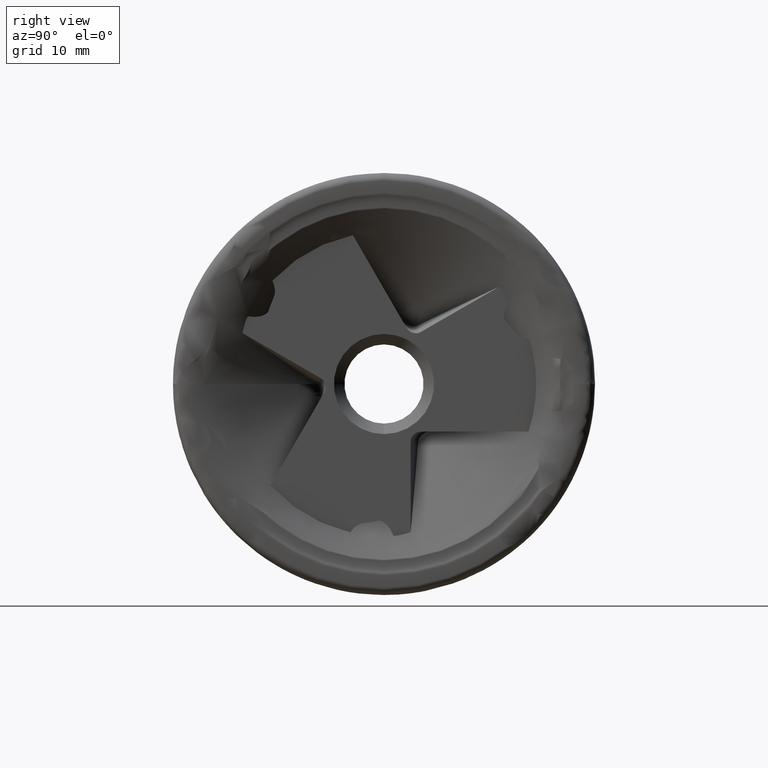
[diagram: clean part render]
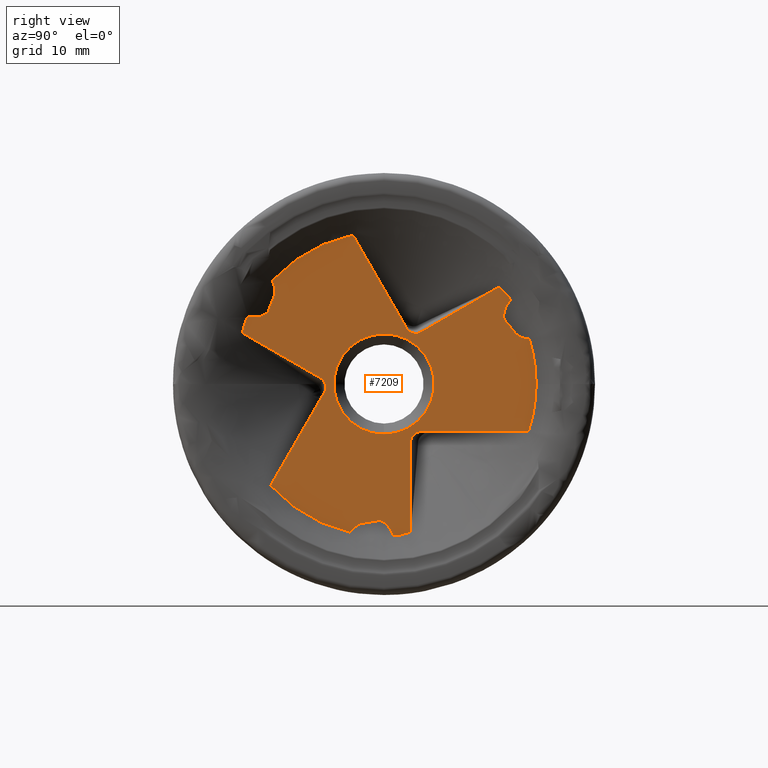
[diagram: same view with one face highlighted and labeled with its STEP entity id]
A machine part, right view. The second image highlights one B-rep face of the part: STEP entity #7209.
In plain terms, the highlighted planar face has unit normal (-1, 0, 0).
Its self-contained STEP definition (entity closure, byte-faithful):
#16 = CARTESIAN_POINT ( 'NONE',  ( -0.5000000000000005600, 3.351750005163252500, 4.845535414424786000 ) ) ;
#19 = VERTEX_POINT ( 'NONE', #11474 ) ;
#105 = VERTEX_POINT ( 'NONE', #3939 ) ;
#125 =( BOUNDED_CURVE ( )  B_SPLINE_CURVE ( 3, ( #6140, #2402, #9063, #10122 ),
 .UNSPECIFIED., .F., .F. ) 
 B_SPLINE_CURVE_WITH_KNOTS ( ( 4, 4 ),
 ( 3.253571808752290500, 3.781706763321075900 ),
 .UNSPECIFIED. ) 
 CURVE ( )  GEOMETRIC_REPRESENTATION_ITEM ( )  RATIONAL_B_SPLINE_CURVE ( ( 1.000000000000000000, 0.9768908783775927000, 0.9768908783775927000, 1.000000000000000000 ) ) 
 REPRESENTATION_ITEM ( '' )  );
#127 = CARTESIAN_POINT ( 'NONE',  ( -0.5000000000000004400, -11.08192346907663000, 6.675620980002825900 ) ) ;
#166 = EDGE_CURVE ( 'NONE', #1456, #9303, #5428, .T. ) ;
#254 = CARTESIAN_POINT ( 'NONE',  ( -0.5000000000108697500, 12.00810344679507600, 7.966066324647489900 ) ) ;
#313 = CARTESIAN_POINT ( 'NONE',  ( -0.5000000000000000000, -10.74187072390124900, -9.605465862133890200 ) ) ;
#318 = DIRECTION ( 'NONE',  ( 0.0000000000000000000, 0.7116359081789792600, -0.7025484568271994600 ) ) ;
#335 = CARTESIAN_POINT ( 'NONE',  ( -0.4999999999999995600, 11.34757849586464600, 6.485020027106956200 ) ) ;
#423 = CARTESIAN_POINT ( 'NONE',  ( -0.5000000000000000000, 2.302259119376288700, 4.239611569003615800 ) ) ;
#444 = EDGE_CURVE ( 'NONE', #9625, #11849, #7264, .T. ) ;
#461 = CARTESIAN_POINT ( 'NONE',  ( -0.5000000000108704200, 0.8947640819788559300, -14.38235579851976300 ) ) ;
#482 = EDGE_CURVE ( 'NONE', #502, #957, #7852, .T. ) ;
#502 = VERTEX_POINT ( 'NONE', #4710 ) ;
#572 = CARTESIAN_POINT ( 'NONE',  ( -0.4999999999999978400, 0.0000000000000000000, 0.0000000000000000000 ) ) ;
#615 = DIRECTION ( 'NONE',  ( 0.0000000000000000000, 0.0000000000000000000, 1.000000000000000000 ) ) ;
#705 = CARTESIAN_POINT ( 'NONE',  ( -0.4999999999999996700, -0.05759716040691217200, -13.06980126241027000 ) ) ;
#730 = CARTESIAN_POINT ( 'NONE',  ( -0.5000000000108823000, -12.90286752877400600, 6.416289473872201800 ) ) ;
#740 = ORIENTED_EDGE ( 'NONE', *, *, #8938, .F. ) ;
#749 = CARTESIAN_POINT ( 'NONE',  ( -0.4999999999999995600, -0.2402956201806203700, -12.93503773701674600 ) ) ;
#758 = DIRECTION ( 'NONE',  ( 0.0000000000000000000, 0.0000000000000000000, 1.000000000000000000 ) ) ;
#767 = DIRECTION ( 'NONE',  ( 1.000000000000000000, -0.0000000000000000000, -0.0000000000000000000 ) ) ;
#777 = CARTESIAN_POINT ( 'NONE',  ( -0.5000000000000000000, -2.825501372257027900, -13.54083971426945300 ) ) ;
#825 = ORIENTED_EDGE ( 'NONE', *, *, #8193, .T. ) ;
#833 = AXIS2_PLACEMENT_3D ( 'NONE', #3605, #6641, #4537 ) ;
#866 = CARTESIAN_POINT ( 'NONE',  ( -0.5000000000000000000, -10.40801795950995000, 8.336441205212464600 ) ) ;
#957 = VERTEX_POINT ( 'NONE', #9761 ) ;
#965 = CARTESIAN_POINT ( 'NONE',  ( -0.5000000000000000000, 3.534180368147209700, -4.500000000000000000 ) ) ;
#966 = VERTEX_POINT ( 'NONE', #11619 ) ;
#1038 = CARTESIAN_POINT ( 'NONE',  ( -0.5000000000000000000, -11.23262406806837400, 6.216315706518378700 ) ) ;
#1059 = CARTESIAN_POINT ( 'NONE',  ( -0.5000000000108704200, 0.8947640819788559300, -14.38235579851976300 ) ) ;
#1068 = AXIS2_PLACEMENT_3D ( 'NONE', #6000, #7175, #4115 ) ;
#1079 = CARTESIAN_POINT ( 'NONE',  ( -0.5000000000000000000, -13.43648316918476300, 4.748013151249163700 ) ) ;
#1091 = LINE ( 'NONE', #11584, #3483 ) ;
#1093 = CARTESIAN_POINT ( 'NONE',  ( -0.5000000000000000000, -2.947642089841456600, 14.10546586213377800 ) ) ;
#1110 = VERTEX_POINT ( 'NONE', #9926 ) ;
#1168 = EDGE_CURVE ( 'NONE', #6959, #8615, #7092, .T. ) ;
#1239 = CARTESIAN_POINT ( 'NONE',  ( -0.5000000000000000000, 11.05879461217032200, 6.390398754303634000 ) ) ;
#1267 = CARTESIAN_POINT ( 'NONE',  ( -0.5000000000000000000, 0.0000000000000000000, -4.750000000000004400 ) ) ;
#1283 = VERTEX_POINT ( 'NONE', #965 ) ;
#1306 =( BOUNDED_CURVE ( )  B_SPLINE_CURVE ( 3, ( #461, #9183, #3396, #1428 ),
 .UNSPECIFIED., .F., .F. ) 
 B_SPLINE_CURVE_WITH_KNOTS ( ( 4, 4 ),
 ( 2.391292861362904100, 2.969428368138225900 ),
 .UNSPECIFIED. ) 
 CURVE ( )  GEOMETRIC_REPRESENTATION_ITEM ( )  RATIONAL_B_SPLINE_CURVE ( ( 1.000000000000000000, 0.9723400247134469400, 0.9723400247134469400, 1.000000000000000000 ) ) 
 REPRESENTATION_ITEM ( '' )  );
#1393 = ORIENTED_EDGE ( 'NONE', *, *, #3468, .F. ) ;
#1402 = CIRCLE ( 'NONE', #833, 14.41016172977331800 ) ;
#1405 = ORIENTED_EDGE ( 'NONE', *, *, #12223, .F. ) ;
#1423 = VECTOR ( 'NONE', #758, 1000.000000000000000 ) ;
#1428 = CARTESIAN_POINT ( 'NONE',  ( -0.4999999999999996700, -0.05759716040691217200, -13.06980126241027000 ) ) ;
#1456 = VERTEX_POINT ( 'NONE', #1267 ) ;
#1463 = LINE ( 'NONE', #1763, #3115 ) ;
#1517 = DIRECTION ( 'NONE',  ( 0.0000000000000000000, 0.0000000000000000000, -1.000000000000000000 ) ) ;
#1539 = EDGE_CURVE ( 'NONE', #9397, #3358, #6103, .T. ) ;
#1583 = CARTESIAN_POINT ( 'NONE',  ( -0.4999999999999995600, -0.4406763028599137700, -12.89484871960344000 ) ) ;
#1590 = DIRECTION ( 'NONE',  ( 0.0000000000000000000, -1.000000000000000000, -3.089363528838321600E-017 ) ) ;
#1600 = CARTESIAN_POINT ( 'NONE',  ( -0.5000000000108823000, -12.90286752877400600, 6.416289473872201800 ) ) ;
#1710 = AXIS2_PLACEMENT_3D ( 'NONE', #10717, #5947, #8799 ) ;
#1759 = CARTESIAN_POINT ( 'NONE',  ( -0.5000000000000000000, -6.023380601438101500, 0.5671987649843741600 ) ) ;
#1763 = CARTESIAN_POINT ( 'NONE',  ( -0.5000000000000000000, 2.302259119376375300, -4.239611569003601600 ) ) ;
#1764 = CARTESIAN_POINT ( 'NONE',  ( -0.5000000000089872600, 13.76746967321938300, 4.255530504497005300 ) ) ;
#1779 = EDGE_LOOP ( 'NONE', ( #5016, #10801 ) ) ;
#1792 = EDGE_CURVE ( 'NONE', #12083, #1283, #8323, .T. ) ;
#1829 = VERTEX_POINT ( 'NONE', #730 ) ;
#1874 =( BOUNDED_CURVE ( )  B_SPLINE_CURVE ( 3, ( #5879, #4862, #4948, #10769 ),
 .UNSPECIFIED., .F., .F. ) 
 B_SPLINE_CURVE_WITH_KNOTS ( ( 4, 4 ),
 ( 0.5177274942527087000, 1.570796326794897000 ),
 .UNSPECIFIED. ) 
 CURVE ( )  GEOMETRIC_REPRESENTATION_ITEM ( )  RATIONAL_B_SPLINE_CURVE ( ( 1.000000000000000000, 0.9097025692410160000, 0.9097025692410160000, 1.000000000000000000 ) ) 
 REPRESENTATION_ITEM ( '' )  );
#1884 = EDGE_CURVE ( 'NONE', #10427, #11122, #6073, .T. ) ;
#1895 = CARTESIAN_POINT ( 'NONE',  ( -0.5000000000000000000, 0.0000000000000000000, 0.0000000000000000000 ) ) ;
#1989 = DIRECTION ( 'NONE',  ( 0.0000000000000000000, 0.4999999999999919500, 0.8660254037844432600 ) ) ;
#2004 = ORIENTED_EDGE ( 'NONE', *, *, #4272, .F. ) ;
#2050 = DIRECTION ( 'NONE',  ( 0.0000000000000000000, -0.2526068569124173000, -0.9675690031418067200 ) ) ;
#2071 = ORIENTED_EDGE ( 'NONE', *, *, #482, .T. ) ;
#2124 = VERTEX_POINT ( 'NONE', #11647 ) ;
#2183 = VERTEX_POINT ( 'NONE', #254 ) ;
#2253 = VECTOR ( 'NONE', #10273, 1000.000000000000000 ) ;
#2304 = ORIENTED_EDGE ( 'NONE', *, *, #444, .F. ) ;
#2402 = CARTESIAN_POINT ( 'NONE',  ( -0.4999999999999998900, 12.68090132505207500, 4.524734015764842400 ) ) ;
#2463 = ORIENTED_EDGE ( 'NONE', *, *, #7576, .T. ) ;
#2496 = CARTESIAN_POINT ( 'NONE',  ( -0.5000000000000000000, 3.502898840190706900, 4.932801235015585200 ) ) ;
#2526 = CARTESIAN_POINT ( 'NONE',  ( -0.4999999999999998900, -12.20916432092517700, 6.290316183544595300 ) ) ;
#2657 = DIRECTION ( 'NONE',  ( 1.000000000000000000, -0.0000000000000000000, -0.0000000000000000000 ) ) ;
#2693 = EDGE_CURVE ( 'NONE', #11849, #6959, #6237, .T. ) ;
#2744 = DIRECTION ( 'NONE',  ( 0.0000000000000000000, 0.0000000000000000000, -1.000000000000000000 ) ) ;
#2801 = ORIENTED_EDGE ( 'NONE', *, *, #1884, .T. ) ;
#2810 = VECTOR ( 'NONE', #10504, 1000.000000000000200 ) ;
#2873 = CARTESIAN_POINT ( 'NONE',  ( -0.4999999999999733500, -10.85020494683053700, 7.199544573864481700 ) ) ;
#2943 = CARTESIAN_POINT ( 'NONE',  ( -0.4999999999999729100, -0.8098860232298993300, -12.99632540715506600 ) ) ;
#3017 = CARTESIAN_POINT ( 'NONE',  ( -0.5000000000000004400, -10.94692841770392600, 6.829061232924109600 ) ) ;
#3071 = VERTEX_POINT ( 'NONE', #2496 ) ;
#3110 = CARTESIAN_POINT ( 'NONE',  ( -0.5000000000000000000, -0.6470677617996973800, -12.95157507440030500 ) ) ;
#3115 = VECTOR ( 'NONE', #3770, 1000.000000000000000 ) ;
#3226 = ORIENTED_EDGE ( 'NONE', *, *, #4218, .F. ) ;
#3334 = VECTOR ( 'NONE', #10952, 1000.000000000000100 ) ;
#3358 = VERTEX_POINT ( 'NONE', #6586 ) ;
#3396 = CARTESIAN_POINT ( 'NONE',  ( -0.5000000000000000000, 0.3305242526840149700, -13.26864037596048900 ) ) ;
#3408 = CIRCLE ( 'NONE', #7881, 14.41016172977331800 ) ;
#3468 = EDGE_CURVE ( 'NONE', #6323, #19, #3511, .T. ) ;
#3483 = VECTOR ( 'NONE', #1989, 1000.000000000000000 ) ;
#3511 = LINE ( 'NONE', #1038, #7768 ) ;
#3605 = CARTESIAN_POINT ( 'NONE',  ( -0.4999999999999978400, 0.0000000000000000000, 0.0000000000000000000 ) ) ;
#3770 = DIRECTION ( 'NONE',  ( 0.0000000000000000000, 0.8660254037844432600, -0.4999999999999920100 ) ) ;
#3807 = EDGE_CURVE ( 'NONE', #11735, #5178, #11840, .T. ) ;
#3843 = ORIENTED_EDGE ( 'NONE', *, *, #8418, .F. ) ;
#3857 = VERTEX_POINT ( 'NONE', #9350 ) ;
#3908 = EDGE_CURVE ( 'NONE', #2183, #502, #1402, .T. ) ;
#3939 = CARTESIAN_POINT ( 'NONE',  ( -0.5000000000089929200, -10.56913236008374600, 9.795213230591267400 ) ) ;
#3988 = CARTESIAN_POINT ( 'NONE',  ( -0.5000000000000000000, -10.89285915255221200, 7.036164656888527900 ) ) ;
#4083 = CARTESIAN_POINT ( 'NONE',  ( -0.5000000000000004400, -5.367299053221969100, -0.2964346595968393400 ) ) ;
#4115 = DIRECTION ( 'NONE',  ( 0.0000000000000000000, 0.0000000000000000000, -1.000000000000000000 ) ) ;
#4140 = AXIS2_PLACEMENT_3D ( 'NONE', #11187, #10163, #1517 ) ;
#4162 = ORIENTED_EDGE ( 'NONE', *, *, #4815, .F. ) ;
#4218 = EDGE_CURVE ( 'NONE', #966, #7833, #8335, .T. ) ;
#4272 = EDGE_CURVE ( 'NONE', #11099, #966, #7474, .T. ) ;
#4276 = EDGE_CURVE ( 'NONE', #1110, #12036, #7309, .T. ) ;
#4390 = DIRECTION ( 'NONE',  ( 0.0000000000000000000, 0.0000000000000000000, -1.000000000000000000 ) ) ;
#4453 = ORIENTED_EDGE ( 'NONE', *, *, #3807, .F. ) ;
#4486 = CARTESIAN_POINT ( 'NONE',  ( -0.4999999999999995600, 11.32221908925716200, 6.259416757013872800 ) ) ;
#4506 = AXIS2_PLACEMENT_3D ( 'NONE', #1895, #9621, #11515 ) ;
#4534 = EDGE_CURVE ( 'NONE', #10427, #3358, #1091, .T. ) ;
#4537 = DIRECTION ( 'NONE',  ( 0.0000000000000000000, 0.0000000000000000000, -1.000000000000000000 ) ) ;
#4595 = CARTESIAN_POINT ( 'NONE',  ( -0.4999999999999978400, 0.0000000000000000000, 0.0000000000000000000 ) ) ;
#4654 = LINE ( 'NONE', #423, #5401 ) ;
#4673 = VERTEX_POINT ( 'NONE', #5970 ) ;
#4676 = DIRECTION ( 'NONE',  ( 0.0000000000000000000, 0.5000000000000041100, -0.8660254037844363800 ) ) ;
#4710 = CARTESIAN_POINT ( 'NONE',  ( -0.5000000000000000000, 11.72082562032577800, 8.383019017998554600 ) ) ;
#4782 = CARTESIAN_POINT ( 'NONE',  ( -0.4999999999999732400, 11.66009097006035100, 5.796780833290539700 ) ) ;
#4785 = CARTESIAN_POINT ( 'NONE',  ( -0.5000000000000069900, 2.520481761247372900, -14.03394076784298900 ) ) ;
#4806 = CARTESIAN_POINT ( 'NONE',  ( -0.5000000000000000000, -11.61442592551625800, 4.272321854873292000 ) ) ;
#4815 = EDGE_CURVE ( 'NONE', #6986, #12036, #125, .T. ) ;
#4860 = CARTESIAN_POINT ( 'NONE',  ( -0.5000000000000000000, 2.130024132956344700, 5.310689980371733100 ) ) ;
#4862 = CARTESIAN_POINT ( 'NONE',  ( -0.5000000000000004400, 2.638348742001607800, 4.800398611892820400 ) ) ;
#4880 = EDGE_CURVE ( 'NONE', #1829, #9768, #11202, .T. ) ;
#4918 = DIRECTION ( 'NONE',  ( 0.0000000000000000000, 0.9642427650914010600, 0.2650205463146002000 ) ) ;
#4920 = FACE_OUTER_BOUND ( 'NONE', #9764, .T. ) ;
#4945 = ORIENTED_EDGE ( 'NONE', *, *, #10215, .T. ) ;
#4948 = CARTESIAN_POINT ( 'NONE',  ( -0.5000000000000004400, 2.316687444266902800, 4.987379641272808000 ) ) ;
#5016 = ORIENTED_EDGE ( 'NONE', *, *, #166, .F. ) ;
#5101 = CIRCLE ( 'NONE', #1068, 14.41016172977331800 ) ;
#5147 = CARTESIAN_POINT ( 'NONE',  ( -0.5000000000000000000, 11.32571751291964900, 6.920562587371523300 ) ) ;
#5148 = CARTESIAN_POINT ( 'NONE',  ( -0.5000000000000000000, -6.023380601438101500, 0.5671987649843741600 ) ) ;
#5167 = CARTESIAN_POINT ( 'NONE',  ( -0.5000000000000000000, 12.42357884062435900, 4.845387353374003500 ) ) ;
#5178 = VERTEX_POINT ( 'NONE', #4860 ) ;
#5258 = ORIENTED_EDGE ( 'NONE', *, *, #9653, .T. ) ;
#5272 = VERTEX_POINT ( 'NONE', #1059 ) ;
#5351 = AXIS2_PLACEMENT_3D ( 'NONE', #572, #5552, #4390 ) ;
#5381 = LINE ( 'NONE', #12356, #6450 ) ;
#5401 = VECTOR ( 'NONE', #6348, 999.9999999999998900 ) ;
#5409 = VERTEX_POINT ( 'NONE', #7062 ) ;
#5428 = CIRCLE ( 'NONE', #1710, 4.750000000000004400 ) ;
#5552 = DIRECTION ( 'NONE',  ( 1.000000000000000000, -0.0000000000000000000, -0.0000000000000000000 ) ) ;
#5564 = CARTESIAN_POINT ( 'NONE',  ( -0.5000000000000000000, 5.084614317029983800, 0.1931896660119640500 ) ) ;
#5598 = EDGE_CURVE ( 'NONE', #5272, #2124, #3408, .T. ) ;
#5625 =( BOUNDED_CURVE ( )  B_SPLINE_CURVE ( 3, ( #9510, #16, #12506, #7742 ),
 .UNSPECIFIED., .F., .F. ) 
 B_SPLINE_CURVE_WITH_KNOTS ( ( 4, 4 ),
 ( 4.336808689942012800E-016, 0.5177274942527087000 ),
 .UNSPECIFIED. ) 
 CURVE ( )  GEOMETRIC_REPRESENTATION_ITEM ( )  RATIONAL_B_SPLINE_CURVE ( ( 1.000000000000000000, 0.9777876418324865600, 0.9777876418324865600, 1.000000000000000000 ) ) 
 REPRESENTATION_ITEM ( '' )  );
#5780 = ORIENTED_EDGE ( 'NONE', *, *, #1168, .F. ) ;
#5800 = CARTESIAN_POINT ( 'NONE',  ( -0.5000000000000000000, 2.520481761247371600, -5.500000000000000000 ) ) ;
#5803 = DIRECTION ( 'NONE',  ( -0.0000000000000000000, 0.3624893552173959500, 0.9319879115922461400 ) ) ;
#5834 = EDGE_CURVE ( 'NONE', #8502, #9397, #1463, .T. ) ;
#5869 =( BOUNDED_CURVE ( )  B_SPLINE_CURVE ( 3, ( #11493, #6700, #777, #10346 ),
 .UNSPECIFIED., .F., .T. ) 
 B_SPLINE_CURVE_WITH_KNOTS ( ( 4, 4 ),
 ( 3.253571808752291300, 3.781706763321077200 ),
 .UNSPECIFIED. ) 
 CURVE ( )  GEOMETRIC_REPRESENTATION_ITEM ( )  RATIONAL_B_SPLINE_CURVE ( ( 1.000000000000000000, 0.9768908783775925900, 0.9768908783775925900, 1.000000000000000000 ) ) 
 REPRESENTATION_ITEM ( '' )  );
#5879 = CARTESIAN_POINT ( 'NONE',  ( -0.5000000000000004400, 3.007872459880327500, 4.800398611892820400 ) ) ;
#5890 = CARTESIAN_POINT ( 'NONE',  ( -0.5000000000000000000, 3.534180368147209700, -4.500000000000000000 ) ) ;
#5946 = VECTOR ( 'NONE', #318, 1000.000000000000100 ) ;
#5947 = DIRECTION ( 'NONE',  ( 1.000000000000000000, -0.0000000000000000000, -0.0000000000000000000 ) ) ;
#5960 = CIRCLE ( 'NONE', #4506, 4.750000000000004400 ) ;
#5967 = CARTESIAN_POINT ( 'NONE',  ( -0.5000000000000004400, -5.516074665260811500, 0.2743055461709263400 ) ) ;
#5970 = CARTESIAN_POINT ( 'NONE',  ( -0.5000000000000004400, 3.007872459880327500, 4.800398611892820400 ) ) ;
#6000 = CARTESIAN_POINT ( 'NONE',  ( -0.4999999999999978400, 0.0000000000000000000, 0.0000000000000000000 ) ) ;
#6073 = CIRCLE ( 'NONE', #11685, 14.41016172977331800 ) ;
#6103 =( BOUNDED_CURVE ( )  B_SPLINE_CURVE ( 3, ( #5148, #5967, #4083, #10816 ),
 .UNSPECIFIED., .F., .F. ) 
 B_SPLINE_CURVE_WITH_KNOTS ( ( 4, 4 ),
 ( 2.385244779468110900E-015, 1.570796326794897400 ),
 .UNSPECIFIED. ) 
 CURVE ( )  GEOMETRIC_REPRESENTATION_ITEM ( )  RATIONAL_B_SPLINE_CURVE ( ( 1.000000000000000000, 0.8047378541243653800, 0.8047378541243653800, 1.000000000000000000 ) ) 
 REPRESENTATION_ITEM ( '' )  );
#6112 = ORIENTED_EDGE ( 'NONE', *, *, #2693, .F. ) ;
#6140 = CARTESIAN_POINT ( 'NONE',  ( -0.5000000000000000000, 12.42357884062435900, 4.845387353374003500 ) ) ;
#6200 = ORIENTED_EDGE ( 'NONE', *, *, #10262, .F. ) ;
#6237 = LINE ( 'NONE', #6964, #3334 ) ;
#6313 = ORIENTED_EDGE ( 'NONE', *, *, #4880, .T. ) ;
#6323 = VERTEX_POINT ( 'NONE', #2873 ) ;
#6348 = DIRECTION ( 'NONE',  ( 0.0000000000000000000, -0.8660254037844363800, -0.5000000000000040000 ) ) ;
#6366 = PLANE ( 'NONE',  #10242 ) ;
#6406 = VECTOR ( 'NONE', #2050, 1000.000000000000000 ) ;
#6408 = CARTESIAN_POINT ( 'NONE',  ( -0.5000000000000000000, -0.6470677617996973800, -12.95157507440030500 ) ) ;
#6450 = VECTOR ( 'NONE', #1590, 1000.000000000000000 ) ;
#6586 = CARTESIAN_POINT ( 'NONE',  ( -0.5000000000000000000, -5.664204501103572700, -0.8106899803717757500 ) ) ;
#6641 = DIRECTION ( 'NONE',  ( 1.000000000000000000, -0.0000000000000000000, -0.0000000000000000000 ) ) ;
#6688 = DIRECTION ( 'NONE',  ( 0.0000000000000000000, 0.0000000000000000000, -1.000000000000000000 ) ) ;
#6700 = CARTESIAN_POINT ( 'NONE',  ( -0.5000000000000000000, -2.421916059506166600, -13.24434969826125500 ) ) ;
#6735 = VECTOR ( 'NONE', #4918, 1000.000000000000100 ) ;
#6800 = VECTOR ( 'NONE', #9055, 1000.000000000000100 ) ;
#6822 = CARTESIAN_POINT ( 'NONE',  ( -0.5000000000000000000, -2.015560881114507400, -13.18182855858650600 ) ) ;
#6959 = VERTEX_POINT ( 'NONE', #2943 ) ;
#6964 = CARTESIAN_POINT ( 'NONE',  ( -0.5000000000000000000, 7.680631313345875500, -10.66272060917703300 ) ) ;
#6986 = VERTEX_POINT ( 'NONE', #5167 ) ;
#7051 = CARTESIAN_POINT ( 'NONE',  ( -0.5000000000000004400, -11.28998133545782200, 6.584781235303262600 ) ) ;
#7058 = ORIENTED_EDGE ( 'NONE', *, *, #4534, .F. ) ;
#7062 = CARTESIAN_POINT ( 'NONE',  ( -0.5000000000000004400, -11.28998133545782200, 6.584781235303262600 ) ) ;
#7092 = LINE ( 'NONE', #10152, #6800 ) ;
#7109 = ORIENTED_EDGE ( 'NONE', *, *, #9526, .T. ) ;
#7175 = DIRECTION ( 'NONE',  ( 1.000000000000000000, -0.0000000000000000000, -0.0000000000000000000 ) ) ;
#7205 = CARTESIAN_POINT ( 'NONE',  ( -0.5000000000000000000, -13.12032024015708300, 5.959023231532807300 ) ) ;
#7209 = ADVANCED_FACE ( 'NONE', ( #7662, #4920 ), #6366, .F. ) ;
#7264 =( BOUNDED_CURVE ( )  B_SPLINE_CURVE ( 3, ( #705, #749, #1583, #6408 ),
 .UNSPECIFIED., .F., .T. ) 
 B_SPLINE_CURVE_WITH_KNOTS ( ( 4, 4 ),
 ( 2.848728898950381600, 3.332593767140636000 ),
 .UNSPECIFIED. ) 
 CURVE ( )  GEOMETRIC_REPRESENTATION_ITEM ( )  RATIONAL_B_SPLINE_CURVE ( ( 1.000000000000000000, 0.9805845445628197400, 0.9805845445628197400, 1.000000000000000000 ) ) 
 REPRESENTATION_ITEM ( '' )  );
#7309 = CIRCLE ( 'NONE', #5351, 14.41016172977331800 ) ;
#7312 = CARTESIAN_POINT ( 'NONE',  ( -0.5000000000000004400, -11.28998133545782200, 6.584781235303262600 ) ) ;
#7360 = DIRECTION ( 'NONE',  ( -0.0000000000000000000, 0.6258805298501890500, -0.7799189460158322300 ) ) ;
#7372 = LINE ( 'NONE', #1079, #6406 ) ;
#7474 =( BOUNDED_CURVE ( )  B_SPLINE_CURVE ( 3, ( #12250, #4486, #12295, #11329 ),
 .UNSPECIFIED., .F., .F. ) 
 B_SPLINE_CURVE_WITH_KNOTS ( ( 4, 4 ),
 ( 2.848728898950381200, 3.332593767140636000 ),
 .UNSPECIFIED. ) 
 CURVE ( )  GEOMETRIC_REPRESENTATION_ITEM ( )  RATIONAL_B_SPLINE_CURVE ( ( 1.000000000000000000, 0.9805845445628197400, 0.9805845445628197400, 1.000000000000000000 ) ) 
 REPRESENTATION_ITEM ( '' )  );
#7570 = DIRECTION ( 'NONE',  ( 0.0000000000000000000, 0.0000000000000000000, -1.000000000000000000 ) ) ;
#7576 = EDGE_CURVE ( 'NONE', #11296, #1110, #11559, .T. ) ;
#7620 = CARTESIAN_POINT ( 'NONE',  ( -0.5000000000089929200, -10.56913236008374600, 9.795213230591267400 ) ) ;
#7662 = FACE_BOUND ( 'NONE', #1779, .T. ) ;
#7742 = CARTESIAN_POINT ( 'NONE',  ( -0.5000000000000004400, 3.007872459880327500, 4.800398611892820400 ) ) ;
#7752 = CARTESIAN_POINT ( 'NONE',  ( -0.5000000000000004400, 2.940369472383998200, -4.500000000000000000 ) ) ;
#7768 = VECTOR ( 'NONE', #5803, 1000.000000000000200 ) ;
#7797 = CARTESIAN_POINT ( 'NONE',  ( -0.5000000000000004400, 2.520481761247371600, -4.914213562373094000 ) ) ;
#7819 = ORIENTED_EDGE ( 'NONE', *, *, #8892, .F. ) ;
#7833 = VERTEX_POINT ( 'NONE', #4782 ) ;
#7852 = LINE ( 'NONE', #9301, #2253 ) ;
#7880 = CARTESIAN_POINT ( 'NONE',  ( -0.4999999999999996700, -0.05759716040691217200, -13.06980126241027000 ) ) ;
#7881 = AXIS2_PLACEMENT_3D ( 'NONE', #4595, #767, #7570 ) ;
#7908 = CARTESIAN_POINT ( 'NONE',  ( -0.5000000000108697500, 12.00810344679507600, 7.966066324647489900 ) ) ;
#8047 = ORIENTED_EDGE ( 'NONE', *, *, #12113, .F. ) ;
#8063 = AXIS2_PLACEMENT_3D ( 'NONE', #10434, #11360, #2744 ) ;
#8075 = ORIENTED_EDGE ( 'NONE', *, *, #4276, .T. ) ;
#8193 = EDGE_CURVE ( 'NONE', #10915, #12083, #10808, .T. ) ;
#8208 = ORIENTED_EDGE ( 'NONE', *, *, #8445, .F. ) ;
#8323 =( BOUNDED_CURVE ( )  B_SPLINE_CURVE ( 3, ( #5800, #7797, #7752, #5890 ),
 .UNSPECIFIED., .F., .T. ) 
 B_SPLINE_CURVE_WITH_KNOTS ( ( 4, 4 ),
 ( 1.166607304588840500E-015, 1.570796326794897200 ),
 .UNSPECIFIED. ) 
 CURVE ( )  GEOMETRIC_REPRESENTATION_ITEM ( )  RATIONAL_B_SPLINE_CURVE ( ( 1.000000000000000000, 0.8047378541243650500, 0.8047378541243650500, 1.000000000000000000 ) ) 
 REPRESENTATION_ITEM ( '' )  );
#8335 = LINE ( 'NONE', #1239, #5946 ) ;
#8379 = CARTESIAN_POINT ( 'NONE',  ( -0.5000000000000000000, 13.68951281376453500, -4.500000000000000000 ) ) ;
#8418 = EDGE_CURVE ( 'NONE', #19, #105, #8479, .T. ) ;
#8445 = EDGE_CURVE ( 'NONE', #8615, #11122, #5869, .T. ) ;
#8479 =( BOUNDED_CURVE ( )  B_SPLINE_CURVE ( 3, ( #866, #8611, #9415, #7620 ),
 .UNSPECIFIED., .F., .F. ) 
 B_SPLINE_CURVE_WITH_KNOTS ( ( 4, 4 ),
 ( 3.253571808752290000, 3.781706763321074100 ),
 .UNSPECIFIED. ) 
 CURVE ( )  GEOMETRIC_REPRESENTATION_ITEM ( )  RATIONAL_B_SPLINE_CURVE ( ( 1.000000000000000000, 0.9768908783775929200, 0.9768908783775929200, 1.000000000000000000 ) ) 
 REPRESENTATION_ITEM ( '' )  );
#8502 = VERTEX_POINT ( 'NONE', #10694 ) ;
#8611 = CARTESIAN_POINT ( 'NONE',  ( -0.4999999999999998900, -10.25898526554600900, 8.719615682496371500 ) ) ;
#8615 = VERTEX_POINT ( 'NONE', #6822 ) ;
#8764 = CARTESIAN_POINT ( 'NONE',  ( -0.4999999999999995600, 11.34757849586464600, 6.485020027106956200 ) ) ;
#8799 = DIRECTION ( 'NONE',  ( 0.0000000000000000000, 0.0000000000000000000, -1.000000000000000000 ) ) ;
#8889 = ORIENTED_EDGE ( 'NONE', *, *, #3908, .T. ) ;
#8892 = EDGE_CURVE ( 'NONE', #5272, #9625, #1306, .T. ) ;
#8921 = CARTESIAN_POINT ( 'NONE',  ( -0.5000000000089895900, -3.198337313135743100, -14.05074373508831100 ) ) ;
#8938 = EDGE_CURVE ( 'NONE', #1829, #5409, #8949, .T. ) ;
#8944 = ORIENTED_EDGE ( 'NONE', *, *, #10917, .T. ) ;
#8949 =( BOUNDED_CURVE ( )  B_SPLINE_CURVE ( 3, ( #1600, #2526, #10201, #7312 ),
 .UNSPECIFIED., .F., .F. ) 
 B_SPLINE_CURVE_WITH_KNOTS ( ( 4, 4 ),
 ( 2.391292861362908500, 2.969428368138225900 ),
 .UNSPECIFIED. ) 
 CURVE ( )  GEOMETRIC_REPRESENTATION_ITEM ( )  RATIONAL_B_SPLINE_CURVE ( ( 1.000000000000000000, 0.9723400247134473800, 0.9723400247134473800, 1.000000000000000000 ) ) 
 REPRESENTATION_ITEM ( '' )  );
#8965 = ORIENTED_EDGE ( 'NONE', *, *, #1792, .T. ) ;
#9025 = VECTOR ( 'NONE', #7360, 1000.000000000000000 ) ;
#9030 = ORIENTED_EDGE ( 'NONE', *, *, #5598, .T. ) ;
#9055 = DIRECTION ( 'NONE',  ( -0.0000000000000000000, -0.9883698850675900500, -0.1520689655764077800 ) ) ;
#9063 = CARTESIAN_POINT ( 'NONE',  ( -0.4999999999999998900, 13.13946186725905800, 4.323463890332410700 ) ) ;
#9074 = EDGE_CURVE ( 'NONE', #9303, #1456, #5960, .T. ) ;
#9088 = ORIENTED_EDGE ( 'NONE', *, *, #11074, .T. ) ;
#9183 = CARTESIAN_POINT ( 'NONE',  ( -0.5000000000000000000, 0.6570085476764706600, -13.71860455267210300 ) ) ;
#9275 = EDGE_CURVE ( 'NONE', #5409, #3857, #11606, .T. ) ;
#9301 = CARTESIAN_POINT ( 'NONE',  ( -0.5000000000000000000, 12.38178398102522200, 7.730500966282078500 ) ) ;
#9303 = VERTEX_POINT ( 'NONE', #11777 ) ;
#9350 = CARTESIAN_POINT ( 'NONE',  ( -0.5000000000000000000, -10.89285915255221200, 7.036164656888527900 ) ) ;
#9397 = VERTEX_POINT ( 'NONE', #1759 ) ;
#9415 = CARTESIAN_POINT ( 'NONE',  ( -0.4999999999999998900, -10.31396049500213300, 9.217375823937000900 ) ) ;
#9436 = CARTESIAN_POINT ( 'NONE',  ( -0.5000000000000000000, 2.520481761247371600, -5.500000000000000000 ) ) ;
#9510 = CARTESIAN_POINT ( 'NONE',  ( -0.5000000000000000000, 3.502898840190706900, 4.932801235015585200 ) ) ;
#9526 = EDGE_CURVE ( 'NONE', #2124, #10915, #11852, .T. ) ;
#9621 = DIRECTION ( 'NONE',  ( 1.000000000000000000, -0.0000000000000000000, -0.0000000000000000000 ) ) ;
#9625 = VERTEX_POINT ( 'NONE', #7880 ) ;
#9653 = EDGE_CURVE ( 'NONE', #9768, #8502, #7372, .T. ) ;
#9761 = CARTESIAN_POINT ( 'NONE',  ( -0.4999999999999995600, 10.89350833953440300, 9.199771618937120400 ) ) ;
#9764 = EDGE_LOOP ( 'NONE', ( #10189, #8889, #2071, #4945, #8944, #10414, #4453, #9088, #3843, #1393, #1405, #10900, #740, #6313, #5258, #11767, #9958, #7058, #2801, #8208, #5780, #6112, #2304, #7819, #9030, #7109, #825, #8965, #8047, #2463, #8075, #4162, #6200, #3226, #2004 ) ) ;
#9768 = VERTEX_POINT ( 'NONE', #7205 ) ;
#9926 = CARTESIAN_POINT ( 'NONE',  ( -0.4999999999999978400, 14.41016172977331800, 0.0000000000000000000 ) ) ;
#9958 = ORIENTED_EDGE ( 'NONE', *, *, #1539, .T. ) ;
#10001 = VECTOR ( 'NONE', #4676, 1000.000000000000000 ) ;
#10104 = EDGE_CURVE ( 'NONE', #2183, #11099, #11961, .T. ) ;
#10122 = CARTESIAN_POINT ( 'NONE',  ( -0.5000000000089872600, 13.76746967321938300, 4.255530504497005300 ) ) ;
#10152 = CARTESIAN_POINT ( 'NONE',  ( -0.5000000000000000000, 6.574780526544027600, -11.86013275264693000 ) ) ;
#10163 = DIRECTION ( 'NONE',  ( 1.000000000000000000, -0.0000000000000000000, -0.0000000000000000000 ) ) ;
#10189 = ORIENTED_EDGE ( 'NONE', *, *, #10104, .F. ) ;
#10201 = CARTESIAN_POINT ( 'NONE',  ( -0.4999999999999998900, -11.65624176560374900, 6.348077788588912400 ) ) ;
#10215 = EDGE_CURVE ( 'NONE', #957, #3071, #4654, .T. ) ;
#10242 = AXIS2_PLACEMENT_3D ( 'NONE', #11205, #12182, #615 ) ;
#10262 = EDGE_CURVE ( 'NONE', #7833, #6986, #11455, .T. ) ;
#10273 = DIRECTION ( 'NONE',  ( 0.0000000000000000000, -0.7116359081789780400, 0.7025484568272008000 ) ) ;
#10346 = CARTESIAN_POINT ( 'NONE',  ( -0.5000000000089895900, -3.198337313135743100, -14.05074373508831100 ) ) ;
#10414 = ORIENTED_EDGE ( 'NONE', *, *, #10983, .T. ) ;
#10427 = VERTEX_POINT ( 'NONE', #313 ) ;
#10434 = CARTESIAN_POINT ( 'NONE',  ( -0.4999999999999978400, 0.0000000000000000000, 0.0000000000000000000 ) ) ;
#10504 = DIRECTION ( 'NONE',  ( 0.0000000000000000000, 0.2526068569124154100, 0.9675690031418071600 ) ) ;
#10508 = CARTESIAN_POINT ( 'NONE',  ( -0.5000000000000000000, 2.520481761247371600, 0.0000000000000000000 ) ) ;
#10618 = CARTESIAN_POINT ( 'NONE',  ( -0.5000000000000000000, 8.179699188159467800, -12.47851411753136700 ) ) ;
#10694 = CARTESIAN_POINT ( 'NONE',  ( -0.5000000000000061100, -13.41399010078185200, 4.834169148905801600 ) ) ;
#10717 = CARTESIAN_POINT ( 'NONE',  ( -0.5000000000000000000, 0.0000000000000000000, 0.0000000000000000000 ) ) ;
#10769 = CARTESIAN_POINT ( 'NONE',  ( -0.5000000000000000000, 2.130024132956344700, 5.310689980371733100 ) ) ;
#10801 = ORIENTED_EDGE ( 'NONE', *, *, #9074, .F. ) ;
#10808 = LINE ( 'NONE', #10508, #1423 ) ;
#10815 = CARTESIAN_POINT ( 'NONE',  ( -0.5000000000000000000, 11.55215577324862900, 7.428288369127451500 ) ) ;
#10816 = CARTESIAN_POINT ( 'NONE',  ( -0.5000000000000000000, -5.664204501103572700, -0.8106899803717757500 ) ) ;
#10900 = ORIENTED_EDGE ( 'NONE', *, *, #9275, .F. ) ;
#10915 = VERTEX_POINT ( 'NONE', #4785 ) ;
#10917 = EDGE_CURVE ( 'NONE', #3071, #4673, #5625, .T. ) ;
#10952 = DIRECTION ( 'NONE',  ( 0.0000000000000000000, -0.9642427650914003900, -0.2650205463146022000 ) ) ;
#10983 = EDGE_CURVE ( 'NONE', #4673, #5178, #1874, .T. ) ;
#11074 = EDGE_CURVE ( 'NONE', #11735, #105, #5101, .T. ) ;
#11099 = VERTEX_POINT ( 'NONE', #8764 ) ;
#11122 = VERTEX_POINT ( 'NONE', #8921 ) ;
#11187 = CARTESIAN_POINT ( 'NONE',  ( -0.4999999999999978400, 0.0000000000000000000, 0.0000000000000000000 ) ) ;
#11202 = CIRCLE ( 'NONE', #4140, 14.41016172977331800 ) ;
#11205 = CARTESIAN_POINT ( 'NONE',  ( -0.5000000000000000000, 4.750000000000004400, 0.0000000000000000000 ) ) ;
#11268 = LINE ( 'NONE', #4806, #2810 ) ;
#11296 = VERTEX_POINT ( 'NONE', #8379 ) ;
#11329 = CARTESIAN_POINT ( 'NONE',  ( -0.4999999999999997800, 11.53992691435181900, 5.915410417511731500 ) ) ;
#11354 = CARTESIAN_POINT ( 'NONE',  ( -0.4999999999999978400, 0.0000000000000000000, 0.0000000000000000000 ) ) ;
#11360 = DIRECTION ( 'NONE',  ( 1.000000000000000000, -0.0000000000000000000, -0.0000000000000000000 ) ) ;
#11455 = LINE ( 'NONE', #12153, #9025 ) ;
#11474 = CARTESIAN_POINT ( 'NONE',  ( -0.5000000000000000000, -10.40801795950995000, 8.336441205212464600 ) ) ;
#11493 = CARTESIAN_POINT ( 'NONE',  ( -0.5000000000000000000, -2.015560881114507400, -13.18182855858650600 ) ) ;
#11515 = DIRECTION ( 'NONE',  ( 0.0000000000000000000, 0.0000000000000000000, -1.000000000000000000 ) ) ;
#11559 = CIRCLE ( 'NONE', #8063, 14.41016172977331800 ) ;
#11584 = CARTESIAN_POINT ( 'NONE',  ( -0.5000000000000000000, -2.709614317030033100, 4.306810333987986200 ) ) ;
#11606 =( BOUNDED_CURVE ( )  B_SPLINE_CURVE ( 3, ( #7051, #127, #3017, #3988 ),
 .UNSPECIFIED., .F., .F. ) 
 B_SPLINE_CURVE_WITH_KNOTS ( ( 4, 4 ),
 ( 2.848728898950383800, 3.332593767140636000 ),
 .UNSPECIFIED. ) 
 CURVE ( )  GEOMETRIC_REPRESENTATION_ITEM ( )  RATIONAL_B_SPLINE_CURVE ( ( 1.000000000000000000, 0.9805845445628198500, 0.9805845445628198500, 1.000000000000000000 ) ) 
 REPRESENTATION_ITEM ( '' )  );
#11619 = CARTESIAN_POINT ( 'NONE',  ( -0.4999999999999997800, 11.53992691435181900, 5.915410417511731500 ) ) ;
#11647 = CARTESIAN_POINT ( 'NONE',  ( -0.5000000000000000000, 1.399494619829365200, -14.34204224952960200 ) ) ;
#11685 = AXIS2_PLACEMENT_3D ( 'NONE', #11354, #2657, #6688 ) ;
#11735 = VERTEX_POINT ( 'NONE', #1093 ) ;
#11767 = ORIENTED_EDGE ( 'NONE', *, *, #5834, .T. ) ;
#11777 = CARTESIAN_POINT ( 'NONE',  ( -0.5000000000000000000, 5.817072295949933300E-016, 4.750000000000004400 ) ) ;
#11840 = LINE ( 'NONE', #5564, #10001 ) ;
#11849 = VERTEX_POINT ( 'NONE', #3110 ) ;
#11852 = LINE ( 'NONE', #10618, #6735 ) ;
#11961 =( BOUNDED_CURVE ( )  B_SPLINE_CURVE ( 3, ( #7908, #10815, #5147, #335 ),
 .UNSPECIFIED., .F., .F. ) 
 B_SPLINE_CURVE_WITH_KNOTS ( ( 4, 4 ),
 ( 2.391292861362904100, 2.969428368138225900 ),
 .UNSPECIFIED. ) 
 CURVE ( )  GEOMETRIC_REPRESENTATION_ITEM ( )  RATIONAL_B_SPLINE_CURVE ( ( 1.000000000000000000, 0.9723400247134469400, 0.9723400247134469400, 1.000000000000000000 ) ) 
 REPRESENTATION_ITEM ( '' )  );
#12036 = VERTEX_POINT ( 'NONE', #1764 ) ;
#12083 = VERTEX_POINT ( 'NONE', #9436 ) ;
#12113 = EDGE_CURVE ( 'NONE', #11296, #1283, #5381, .T. ) ;
#12153 = CARTESIAN_POINT ( 'NONE',  ( -0.5000000000000000000, 11.78284354152427000, 5.643817046128450700 ) ) ;
#12182 = DIRECTION ( 'NONE',  ( -1.000000000000000000, 0.0000000000000000000, 0.0000000000000000000 ) ) ;
#12223 = EDGE_CURVE ( 'NONE', #3857, #6323, #11268, .T. ) ;
#12250 = CARTESIAN_POINT ( 'NONE',  ( -0.4999999999999995600, 11.34757849586464600, 6.485020027106956200 ) ) ;
#12295 = CARTESIAN_POINT ( 'NONE',  ( -0.4999999999999995600, 11.38760472056375200, 6.065787486679282900 ) ) ;
#12356 = CARTESIAN_POINT ( 'NONE',  ( -0.5000000000000000000, 4.750000000000004400, -4.500000000000000000 ) ) ;
#12506 = CARTESIAN_POINT ( 'NONE',  ( -0.5000000000000005600, 3.182992714339298000, 4.800398611892821200 ) ) ;